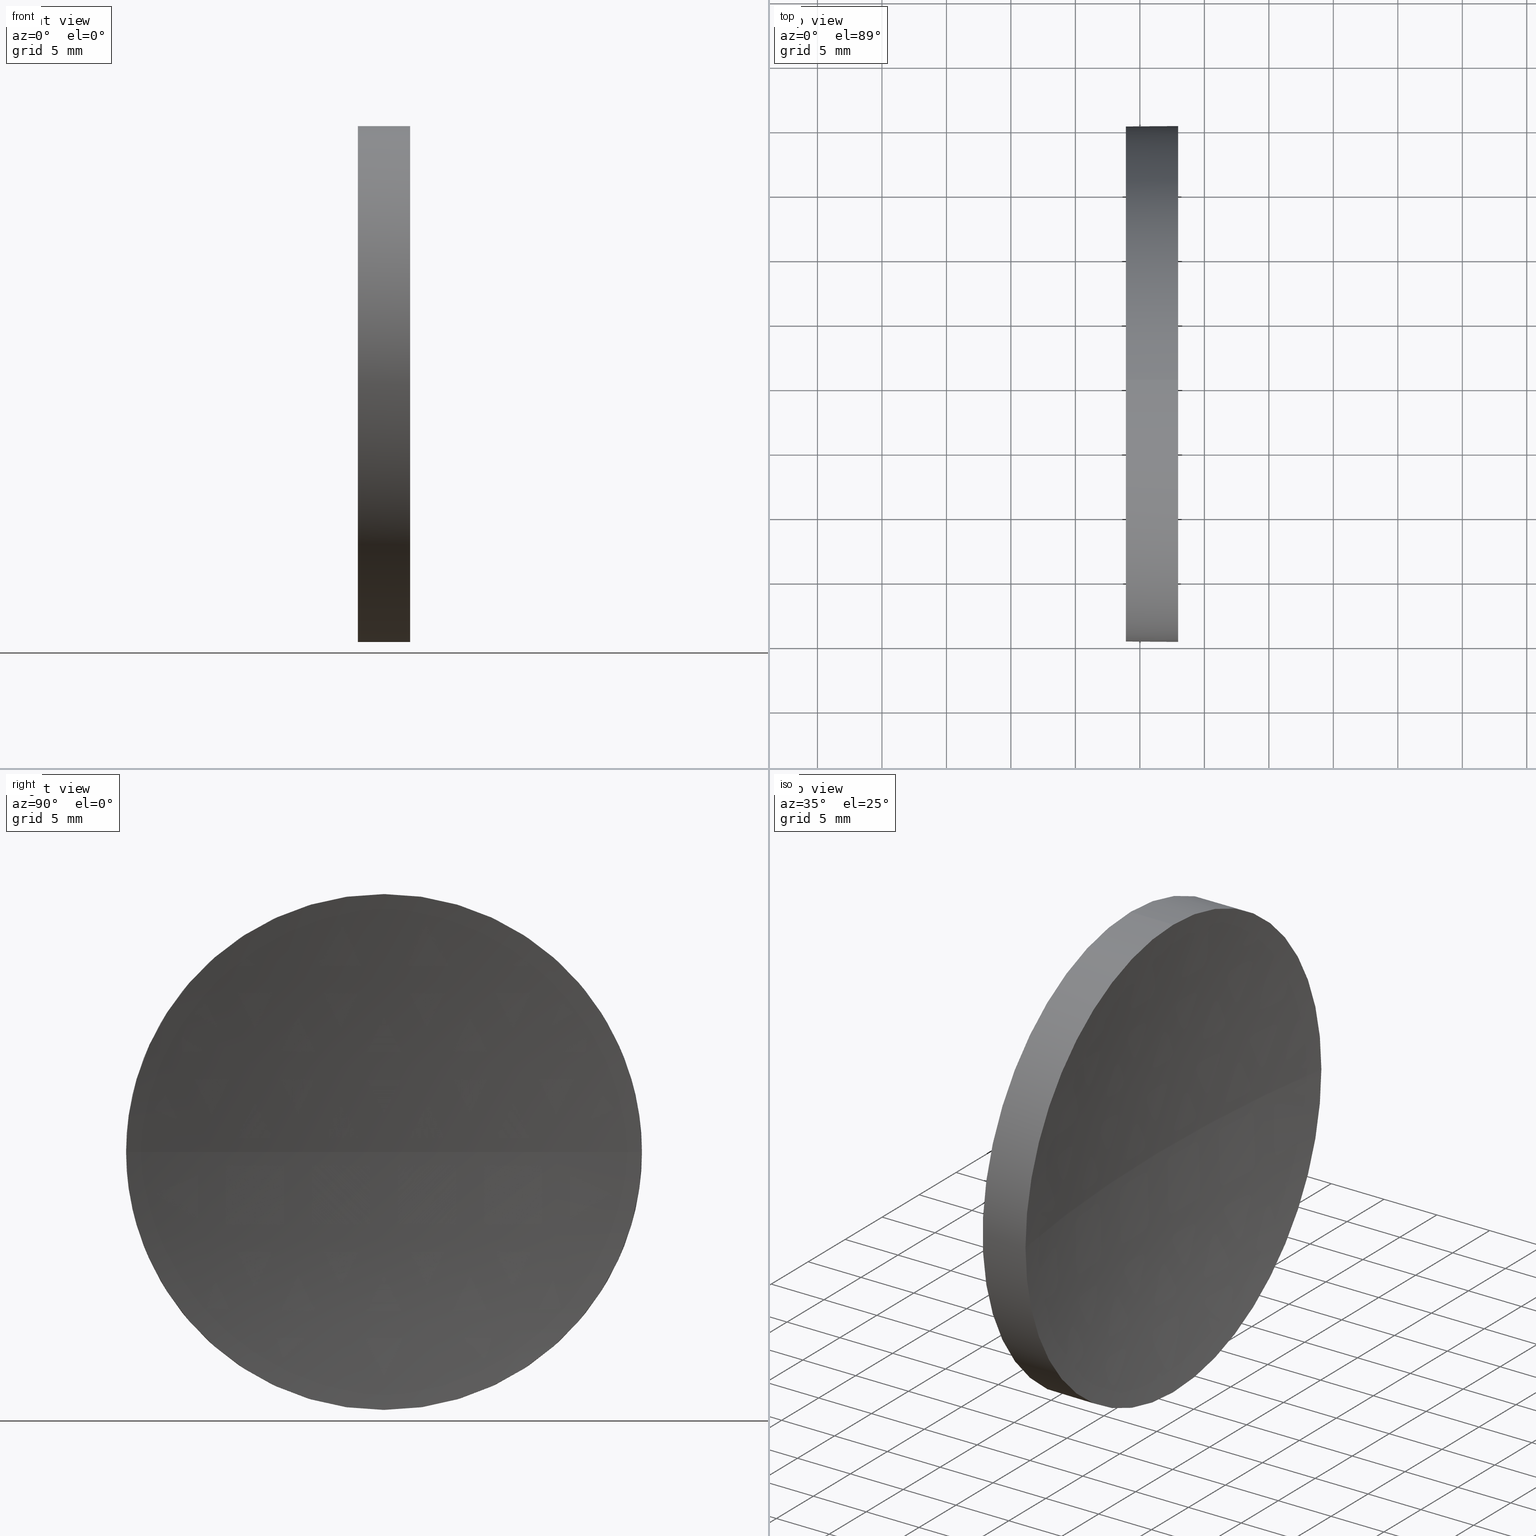
[diagram: canonical four-view strip — front | top / right | iso, engineering-drawing reading convention]
A machine part, canonical four-view strip (front | top / right | iso — engineering-drawing reading convention). The complete STEP part file that produces these views, byte-faithful:
ISO-10303-21;
HEADER;
FILE_DESCRIPTION (( 'STEP AP214' ),
    '1' );
FILE_NAME ('120051.STEP',
    '2019-06-18T01:04:55',
    ( '' ),
    ( '' ),
    'SwSTEP 2.0',
    'SolidWorks 2016',
    '' );
FILE_SCHEMA (( 'AUTOMOTIVE_DESIGN' ));
ENDSEC;

DATA;
#1 = EDGE_CURVE ( 'NONE', #37, #3, #143, .T. ) ;
#2 = SURFACE_STYLE_FILL_AREA ( #79 ) ;
#3 = VERTEX_POINT ( 'NONE', #162 ) ;
#4 = AXIS2_PLACEMENT_3D ( 'NONE', #6, #105, #23 ) ;
#5 = AXIS2_PLACEMENT_3D ( 'NONE', #44, #34, #88 ) ;
#6 = CARTESIAN_POINT ( 'NONE',  ( 117.9688176770456600, 65.15563045701519200, 0.0000000000000000000 ) ) ;
#7 = FACE_OUTER_BOUND ( 'NONE', #118, .T. ) ;
#8 = CARTESIAN_POINT ( 'NONE',  ( 245.6519316741596400, 65.15563045701519200, 0.0000000000000000000 ) ) ;
#9 = DIRECTION ( 'NONE',  ( 0.0000000000000000000, 0.0000000000000000000, 1.000000000000000000 ) ) ;
#10 = EDGE_CURVE ( 'NONE', #157, #139, #89, .T. ) ;
#11 = CARTESIAN_POINT ( 'NONE',  ( 113.9119316741596200, 65.15563045701519200, 20.00000000000000400 ) ) ;
#12 = EDGE_LOOP ( 'NONE', ( #107, #130, #92, #186 ) ) ;
#13 =( NAMED_UNIT ( * ) SI_UNIT ( $, .STERADIAN. ) SOLID_ANGLE_UNIT ( ) );
#14 = PRESENTATION_LAYER_ASSIGNMENT (  '', '', ( #53 ) ) ;
#15 = CARTESIAN_POINT ( 'NONE',  ( 117.9688176770456600, 65.15563045701519200, 0.0000000000000000000 ) ) ;
#16 = DIRECTION ( 'NONE',  ( 0.0000000000000000000, 0.0000000000000000000, 1.000000000000000000 ) ) ;
#17 = AXIS2_PLACEMENT_3D ( 'NONE', #8, #106, #24 ) ;
#18 = PRODUCT_CONTEXT ( 'NONE', #123, 'mechanical' ) ;
#19 = AXIS2_PLACEMENT_3D ( 'NONE', #108, #172, #120 ) ;
#20 = ORIENTED_EDGE ( 'NONE', *, *, #59, .F. ) ;
#21 = EDGE_CURVE ( 'NONE', #139, #51, #112, .T. ) ;
#22 = MECHANICAL_DESIGN_GEOMETRIC_PRESENTATION_REPRESENTATION (  '', ( #53 ), #49 ) ;
#23 = DIRECTION ( 'NONE',  ( 0.0000000000000000000, 0.0000000000000000000, 1.000000000000000000 ) ) ;
#24 = DIRECTION ( 'NONE',  ( 0.0000000000000000000, -1.000000000000000000, -1.224646799147353500E-016 ) ) ;
#25 = CARTESIAN_POINT ( 'NONE',  ( 113.9119316741596200, 65.15563045701519200, -20.00000000000000400 ) ) ;
#26 =( NAMED_UNIT ( * ) SI_UNIT ( $, .STERADIAN. ) SOLID_ANGLE_UNIT ( ) );
#27 = AXIS2_PLACEMENT_3D ( 'NONE', #178, #33, #136 ) ;
#28 = DIRECTION ( 'NONE',  ( 1.000000000000000000, 0.0000000000000000000, 0.0000000000000000000 ) ) ;
#29 = DIRECTION ( 'NONE',  ( 0.0000000000000000000, 0.0000000000000000000, 1.000000000000000000 ) ) ;
#30 = VECTOR ( 'NONE', #153, 1000.000000000000000 ) ;
#31 = DIRECTION ( 'NONE',  ( 0.0000000000000000000, 0.0000000000000000000, 1.000000000000000000 ) ) ;
#32 = ORIENTED_EDGE ( 'NONE', *, *, #10, .T. ) ;
#33 = DIRECTION ( 'NONE',  ( -1.000000000000000000, -0.0000000000000000000, -0.0000000000000000000 ) ) ;
#34 = DIRECTION ( 'NONE',  ( 0.0000000000000000000, 0.0000000000000000000, 1.000000000000000000 ) ) ;
#35 = ORIENTED_EDGE ( 'NONE', *, *, #21, .T. ) ;
#36 = AXIS2_PLACEMENT_3D ( 'NONE', #52, #9, #78 ) ;
#37 = VERTEX_POINT ( 'NONE', #176 ) ;
#38 = FACE_OUTER_BOUND ( 'NONE', #72, .T. ) ;
#39 = ORIENTED_EDGE ( 'NONE', *, *, #146, .F. ) ;
#40 = APPLICATION_PROTOCOL_DEFINITION ( 'draft international standard', 'automotive_design', 1998, #123 ) ;
#41 =( LENGTH_UNIT ( ) NAMED_UNIT ( * ) SI_UNIT ( .MILLI., .METRE. ) );
#42 = CLOSED_SHELL ( 'NONE', ( #185, #45, #128, #69, #70 ) ) ;
#43 = DIRECTION ( 'NONE',  ( -1.000000000000000000, 0.0000000000000000000, 0.0000000000000000000 ) ) ;
#44 = CARTESIAN_POINT ( 'NONE',  ( 0.0000000000000000000, 0.0000000000000000000, 0.0000000000000000000 ) ) ;
#45 = ADVANCED_FACE ( 'NONE', ( #145 ), #180, .F. ) ;
#46 = PRESENTATION_LAYER_ASSIGNMENT (  '', '', ( #81 ) ) ;
#47 = ORIENTED_EDGE ( 'NONE', *, *, #1, .F. ) ;
#48 = ORIENTED_EDGE ( 'NONE', *, *, #10, .F. ) ;
#49 =( GEOMETRIC_REPRESENTATION_CONTEXT ( 3 ) GLOBAL_UNCERTAINTY_ASSIGNED_CONTEXT ( ( #129 ) ) GLOBAL_UNIT_ASSIGNED_CONTEXT ( ( #182, #101, #127 ) ) REPRESENTATION_CONTEXT ( 'NONE', 'WORKASPACE' ) );
#50 = SHAPE_DEFINITION_REPRESENTATION ( #114, #102 ) ;
#51 = VERTEX_POINT ( 'NONE', #25 ) ;
#52 = CARTESIAN_POINT ( 'NONE',  ( 245.6519316741596400, 65.15563045701519200, 0.0000000000000000000 ) ) ;
#53 = STYLED_ITEM ( 'NONE', ( #57 ), #102 ) ;
#54 = ORIENTED_EDGE ( 'NONE', *, *, #183, .F. ) ;
#55 =( GEOMETRIC_REPRESENTATION_CONTEXT ( 3 ) GLOBAL_UNCERTAINTY_ASSIGNED_CONTEXT ( ( #133 ) ) GLOBAL_UNIT_ASSIGNED_CONTEXT ( ( #41, #181, #13 ) ) REPRESENTATION_CONTEXT ( 'NONE', 'WORKASPACE' ) );
#56 = CIRCLE ( 'NONE', #163, 20.00000000000000400 ) ;
#57 = PRESENTATION_STYLE_ASSIGNMENT (( #100 ) ) ;
#58 = ORIENTED_EDGE ( 'NONE', *, *, #146, .T. ) ;
#59 = EDGE_CURVE ( 'NONE', #157, #37, #142, .T. ) ;
#60 = CIRCLE ( 'NONE', #141, 20.00000000000000400 ) ;
#61 = ORIENTED_EDGE ( 'NONE', *, *, #21, .F. ) ;
#62 = AXIS2_PLACEMENT_3D ( 'NONE', #138, #113, #31 ) ;
#63 = DIRECTION ( 'NONE',  ( -1.000000000000000000, -0.0000000000000000000, -0.0000000000000000000 ) ) ;
#64 = CARTESIAN_POINT ( 'NONE',  ( 113.9119316741596200, 65.15563045701519200, 0.0000000000000000000 ) ) ;
#65 = DIRECTION ( 'NONE',  ( 0.0000000000000000000, 0.0000000000000000000, -1.000000000000000000 ) ) ;
#66 = COLOUR_RGB ( '',1.000000000000000000, 1.000000000000000000, 1.000000000000000000 ) ;
#67 = AXIS2_PLACEMENT_3D ( 'NONE', #179, #165, #111 ) ;
#68 = ORIENTED_EDGE ( 'NONE', *, *, #183, .T. ) ;
#69 = ADVANCED_FACE ( 'NONE', ( #38 ), #134, .T. ) ;
#70 = ADVANCED_FACE ( 'NONE', ( #7 ), #97, .F. ) ;
#71 = CIRCLE ( 'NONE', #137, 129.2400000000000100 ) ;
#72 = EDGE_LOOP ( 'NONE', ( #152, #121, #58, #32, #54 ) ) ;
#73 = PRODUCT_DEFINITION_FORMATION_WITH_SPECIFIED_SOURCE ( '�κ�', '', #158, .NOT_KNOWN. ) ;
#74 = PRODUCT_DEFINITION_CONTEXT ( 'detailed design', #155, 'design' ) ;
#75 = EDGE_LOOP ( 'NONE', ( #47, #20, #39, #87 ) ) ;
#76 = SPHERICAL_SURFACE ( 'NONE', #67, 129.2400000000000100 ) ;
#77 = CARTESIAN_POINT ( 'NONE',  ( 105.6218371238301200, 65.15563045701519200, 20.00000000000000400 ) ) ;
#78 = DIRECTION ( 'NONE',  ( 0.0000000000000000000, -1.000000000000000000, 0.0000000000000000000 ) ) ;
#79 = FILL_AREA_STYLE ('',( #93 ) ) ;
#80 = DIRECTION ( 'NONE',  ( 0.0000000000000000000, 0.0000000000000000000, -1.000000000000000000 ) ) ;
#81 = STYLED_ITEM ( 'NONE', ( #147 ), #116 ) ;
#82 = ORIENTED_EDGE ( 'NONE', *, *, #166, .T. ) ;
#83 =( NAMED_UNIT ( * ) PLANE_ANGLE_UNIT ( ) SI_UNIT ( $, .RADIAN. ) );
#84 = DIRECTION ( 'NONE',  ( -1.000000000000000000, -0.0000000000000000000, -0.0000000000000000000 ) ) ;
#85 = DIRECTION ( 'NONE',  ( 0.0000000000000000000, 0.0000000000000000000, 1.000000000000000000 ) ) ;
#86 = SURFACE_SIDE_STYLE ('',( #91 ) ) ;
#87 = ORIENTED_EDGE ( 'NONE', *, *, #175, .T. ) ;
#88 = DIRECTION ( 'NONE',  ( 1.000000000000000000, 0.0000000000000000000, 0.0000000000000000000 ) ) ;
#89 = LINE ( 'NONE', #77, #154 ) ;
#90 = UNCERTAINTY_MEASURE_WITH_UNIT (LENGTH_MEASURE( 1.000000000000000100E-005 ), #151, 'distance_accuracy_value', 'NONE');
#91 = SURFACE_STYLE_FILL_AREA ( #95 ) ;
#92 = ORIENTED_EDGE ( 'NONE', *, *, #175, .F. ) ;
#93 = FILL_AREA_STYLE_COLOUR ( '', #66 ) ;
#94 = FILL_AREA_STYLE_COLOUR ( '', #160 ) ;
#95 = FILL_AREA_STYLE ('',( #94 ) ) ;
#96 = SURFACE_SIDE_STYLE ('',( #2 ) ) ;
#97 = PLANE ( 'NONE',  #161 ) ;
#98 = VERTEX_POINT ( 'NONE', #140 ) ;
#99 = CARTESIAN_POINT ( 'NONE',  ( 245.6519316741596400, 65.15563045701519200, 0.0000000000000000000 ) ) ;
#100 = SURFACE_STYLE_USAGE ( .BOTH. , #86 ) ;
#101 =( NAMED_UNIT ( * ) PLANE_ANGLE_UNIT ( ) SI_UNIT ( $, .RADIAN. ) );
#102 = ADVANCED_BREP_SHAPE_REPRESENTATION ( '120051', ( #116, #5 ), #168 ) ;
#103 = EDGE_LOOP ( 'NONE', ( #174, #82, #61, #48, #159 ) ) ;
#104 = CIRCLE ( 'NONE', #131, 20.00000000000000400 ) ;
#105 = DIRECTION ( 'NONE',  ( -1.000000000000000000, -0.0000000000000000000, -0.0000000000000000000 ) ) ;
#106 = DIRECTION ( 'NONE',  ( 0.0000000000000000000, -1.224646799147353200E-016, 1.000000000000000000 ) ) ;
#107 = ORIENTED_EDGE ( 'NONE', *, *, #115, .F. ) ;
#108 = CARTESIAN_POINT ( 'NONE',  ( 105.6218371238301200, 65.15563045701519200, 0.0000000000000000000 ) ) ;
#109 = DIRECTION ( 'NONE',  ( -1.000000000000000000, -0.0000000000000000000, -0.0000000000000000000 ) ) ;
#110 = SURFACE_STYLE_USAGE ( .BOTH. , #96 ) ;
#111 = DIRECTION ( 'NONE',  ( 0.0000000000000000000, -1.000000000000000000, 0.0000000000000000000 ) ) ;
#112 = CIRCLE ( 'NONE', #124, 20.00000000000000400 ) ;
#113 = DIRECTION ( 'NONE',  ( -1.000000000000000000, -0.0000000000000000000, -0.0000000000000000000 ) ) ;
#114 = PRODUCT_DEFINITION_SHAPE ( 'NONE', 'NONE',  #148 ) ;
#115 = EDGE_CURVE ( 'NONE', #37, #98, #104, .T. ) ;
#116 = MANIFOLD_SOLID_BREP ( '��ת1', #42 ) ;
#117 = FACE_OUTER_BOUND ( 'NONE', #75, .T. ) ;
#118 = EDGE_LOOP ( 'NONE', ( #35, #68 ) ) ;
#119 = MECHANICAL_DESIGN_GEOMETRIC_PRESENTATION_REPRESENTATION (  '', ( #81 ), #55 ) ;
#120 = DIRECTION ( 'NONE',  ( 0.0000000000000000000, 0.0000000000000000000, 1.000000000000000000 ) ) ;
#121 = ORIENTED_EDGE ( 'NONE', *, *, #169, .T. ) ;
#122 = DIRECTION ( 'NONE',  ( -1.000000000000000000, -0.0000000000000000000, -0.0000000000000000000 ) ) ;
#123 = APPLICATION_CONTEXT ( 'automotive_design' ) ;
#124 = AXIS2_PLACEMENT_3D ( 'NONE', #135, #63, #164 ) ;
#125 = CARTESIAN_POINT ( 'NONE',  ( 117.9688176770456600, 65.15563045701519200, 0.0000000000000000000 ) ) ;
#126 = CARTESIAN_POINT ( 'NONE',  ( 117.9688176770456800, 45.15563045701513500, 0.0000000000000000000 ) ) ;
#127 =( NAMED_UNIT ( * ) SI_UNIT ( $, .STERADIAN. ) SOLID_ANGLE_UNIT ( ) );
#128 = ADVANCED_FACE ( 'NONE', ( #117 ), #76, .F. ) ;
#129 = UNCERTAINTY_MEASURE_WITH_UNIT (LENGTH_MEASURE( 1.000000000000000100E-005 ), #182, 'distance_accuracy_value', 'NONE');
#130 = ORIENTED_EDGE ( 'NONE', *, *, #1, .T. ) ;
#131 = AXIS2_PLACEMENT_3D ( 'NONE', #125, #84, #16 ) ;
#132 = PRODUCT_RELATED_PRODUCT_CATEGORY ( 'part', '', ( #158 ) ) ;
#133 = UNCERTAINTY_MEASURE_WITH_UNIT (LENGTH_MEASURE( 1.000000000000000100E-005 ), #41, 'distance_accuracy_value', 'NONE');
#134 = CYLINDRICAL_SURFACE ( 'NONE', #19, 20.00000000000000400 ) ;
#135 = CARTESIAN_POINT ( 'NONE',  ( 113.9119316741596200, 65.15563045701519200, 0.0000000000000000000 ) ) ;
#136 = DIRECTION ( 'NONE',  ( 0.0000000000000000000, 0.0000000000000000000, 1.000000000000000000 ) ) ;
#137 = AXIS2_PLACEMENT_3D ( 'NONE', #99, #80, #43 ) ;
#138 = CARTESIAN_POINT ( 'NONE',  ( 113.9119316741596200, 65.15563045701519200, 0.0000000000000000000 ) ) ;
#139 = VERTEX_POINT ( 'NONE', #11 ) ;
#140 = CARTESIAN_POINT ( 'NONE',  ( 117.9688176770456600, 65.15563045701519200, -20.00000000000000400 ) ) ;
#141 = AXIS2_PLACEMENT_3D ( 'NONE', #15, #177, #29 ) ;
#142 = CIRCLE ( 'NONE', #4, 20.00000000000000400 ) ;
#143 = CIRCLE ( 'NONE', #17, 129.2400000000000100 ) ;
#144 = FACE_OUTER_BOUND ( 'NONE', #103, .T. ) ;
#145 = FACE_OUTER_BOUND ( 'NONE', #12, .T. ) ;
#146 = EDGE_CURVE ( 'NONE', #171, #157, #60, .T. ) ;
#147 = PRESENTATION_STYLE_ASSIGNMENT (( #110 ) ) ;
#148 = PRODUCT_DEFINITION ( 'δ֪', '', #73, #74 ) ;
#149 = CARTESIAN_POINT ( 'NONE',  ( 117.9688176770456600, 65.15563045701519200, 0.0000000000000000000 ) ) ;
#150 = CARTESIAN_POINT ( 'NONE',  ( 105.6218371238301200, 65.15563045701519200, -20.00000000000000400 ) ) ;
#151 =( LENGTH_UNIT ( ) NAMED_UNIT ( * ) SI_UNIT ( .MILLI., .METRE. ) );
#152 = ORIENTED_EDGE ( 'NONE', *, *, #166, .F. ) ;
#153 = DIRECTION ( 'NONE',  ( -1.000000000000000000, -0.0000000000000000000, -0.0000000000000000000 ) ) ;
#154 = VECTOR ( 'NONE', #122, 1000.000000000000000 ) ;
#155 = APPLICATION_CONTEXT ( 'automotive_design' ) ;
#156 = CYLINDRICAL_SURFACE ( 'NONE', #27, 20.00000000000000400 ) ;
#157 = VERTEX_POINT ( 'NONE', #167 ) ;
#158 = PRODUCT ( '120051', '120051', '', ( #18 ) ) ;
#159 = ORIENTED_EDGE ( 'NONE', *, *, #59, .T. ) ;
#160 = COLOUR_RGB ( '',1.000000000000000000, 1.000000000000000000, 1.000000000000000000 ) ;
#161 = AXIS2_PLACEMENT_3D ( 'NONE', #64, #28, #65 ) ;
#162 = CARTESIAN_POINT ( 'NONE',  ( 116.4119316741596200, 65.15563045701517800, 0.0000000000000000000 ) ) ;
#163 = AXIS2_PLACEMENT_3D ( 'NONE', #149, #109, #85 ) ;
#164 = DIRECTION ( 'NONE',  ( 0.0000000000000000000, 0.0000000000000000000, 1.000000000000000000 ) ) ;
#165 = DIRECTION ( 'NONE',  ( 0.0000000000000000000, 0.0000000000000000000, 1.000000000000000000 ) ) ;
#166 = EDGE_CURVE ( 'NONE', #98, #51, #173, .T. ) ;
#167 = CARTESIAN_POINT ( 'NONE',  ( 117.9688176770456600, 65.15563045701519200, 20.00000000000000400 ) ) ;
#168 =( GEOMETRIC_REPRESENTATION_CONTEXT ( 3 ) GLOBAL_UNCERTAINTY_ASSIGNED_CONTEXT ( ( #90 ) ) GLOBAL_UNIT_ASSIGNED_CONTEXT ( ( #151, #83, #26 ) ) REPRESENTATION_CONTEXT ( 'NONE', 'WORKASPACE' ) );
#169 = EDGE_CURVE ( 'NONE', #98, #171, #56, .T. ) ;
#170 = CIRCLE ( 'NONE', #62, 20.00000000000000400 ) ;
#171 = VERTEX_POINT ( 'NONE', #126 ) ;
#172 = DIRECTION ( 'NONE',  ( -1.000000000000000000, -0.0000000000000000000, -0.0000000000000000000 ) ) ;
#173 = LINE ( 'NONE', #150, #30 ) ;
#174 = ORIENTED_EDGE ( 'NONE', *, *, #115, .T. ) ;
#175 = EDGE_CURVE ( 'NONE', #171, #3, #71, .T. ) ;
#176 = CARTESIAN_POINT ( 'NONE',  ( 117.9688176770456800, 85.15563045701524900, 2.449293598294713200E-015 ) ) ;
#177 = DIRECTION ( 'NONE',  ( -1.000000000000000000, -0.0000000000000000000, -0.0000000000000000000 ) ) ;
#178 = CARTESIAN_POINT ( 'NONE',  ( 105.6218371238301200, 65.15563045701519200, 0.0000000000000000000 ) ) ;
#179 = CARTESIAN_POINT ( 'NONE',  ( 245.6519316741596400, 65.15563045701519200, 0.0000000000000000000 ) ) ;
#180 = SPHERICAL_SURFACE ( 'NONE', #36, 129.2400000000000100 ) ;
#181 =( NAMED_UNIT ( * ) PLANE_ANGLE_UNIT ( ) SI_UNIT ( $, .RADIAN. ) );
#182 =( LENGTH_UNIT ( ) NAMED_UNIT ( * ) SI_UNIT ( .MILLI., .METRE. ) );
#183 = EDGE_CURVE ( 'NONE', #51, #139, #170, .T. ) ;
#184 = APPLICATION_PROTOCOL_DEFINITION ( 'draft international standard', 'automotive_design', 1998, #155 ) ;
#185 = ADVANCED_FACE ( 'NONE', ( #144 ), #156, .T. ) ;
#186 = ORIENTED_EDGE ( 'NONE', *, *, #169, .F. ) ;
ENDSEC;
END-ISO-10303-21;
